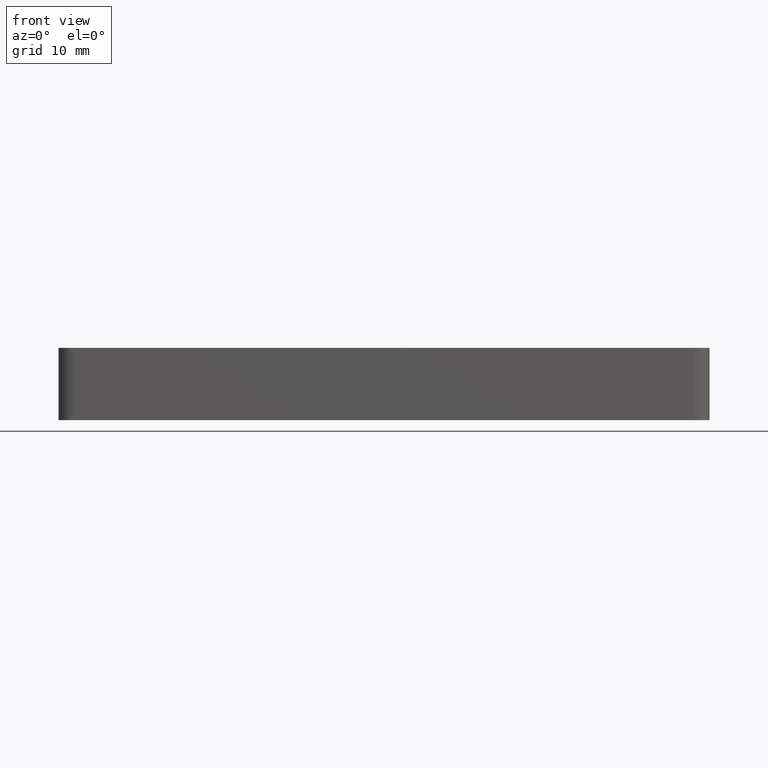
[diagram: clean part render]
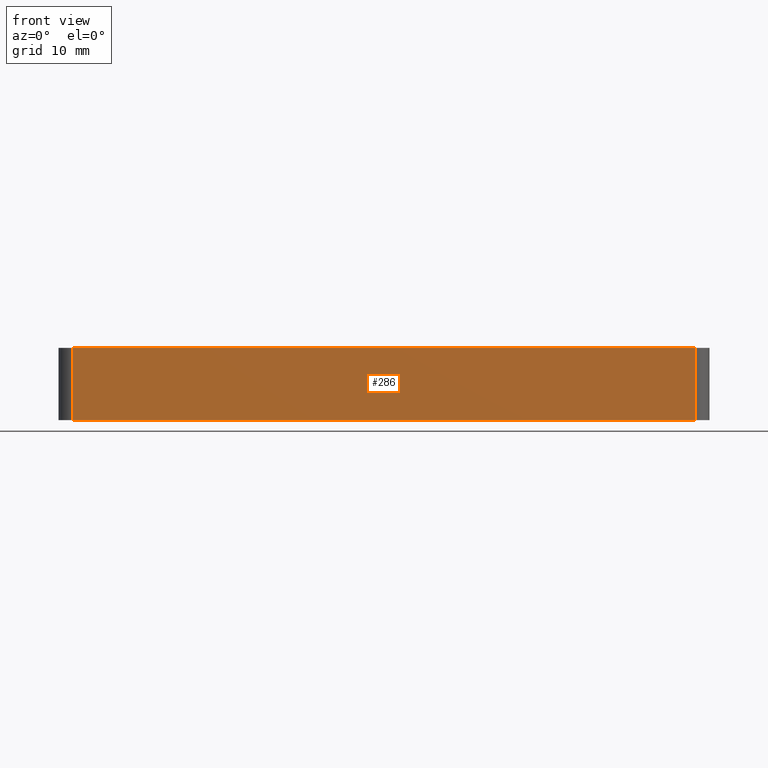
[diagram: same view with one face highlighted and labeled with its STEP entity id]
A machine part, front view. The second image highlights one B-rep face of the part: STEP entity #286.
In plain terms, the highlighted planar face has unit normal (0, -1, 0).
Its self-contained STEP definition (entity closure, byte-faithful):
#17=LINE('',#449,#33);
#21=LINE('',#463,#37);
#25=LINE('',#476,#41);
#31=LINE('',#489,#47);
#33=VECTOR('',#368,10.);
#37=VECTOR('',#380,86.);
#41=VECTOR('',#394,10.);
#47=VECTOR('',#410,86.);
#54=PLANE('',#323);
#84=FACE_OUTER_BOUND('',#111,.T.);
#111=EDGE_LOOP('',(#247,#248,#249,#250));
#144=VERTEX_POINT('',#442);
#147=VERTEX_POINT('',#447);
#153=VERTEX_POINT('',#461);
#157=VERTEX_POINT('',#474);
#173=EDGE_CURVE('',#147,#144,#17,.T.);
#180=EDGE_CURVE('',#153,#147,#21,.T.);
#186=EDGE_CURVE('',#157,#153,#25,.T.);
#193=EDGE_CURVE('',#144,#157,#31,.T.);
#247=ORIENTED_EDGE('',*,*,#173,.F.);
#248=ORIENTED_EDGE('',*,*,#180,.F.);
#249=ORIENTED_EDGE('',*,*,#186,.F.);
#250=ORIENTED_EDGE('',*,*,#193,.F.);
#286=ADVANCED_FACE('',(#84),#54,.T.);
#323=AXIS2_PLACEMENT_3D('',#488,#408,#409);
#368=DIRECTION('',(0.,0.,1.));
#380=DIRECTION('',(-1.,0.,0.));
#394=DIRECTION('',(0.,0.,-1.));
#408=DIRECTION('center_axis',(0.,-1.,0.));
#409=DIRECTION('ref_axis',(1.,0.,0.));
#410=DIRECTION('',(1.,0.,0.));
#442=CARTESIAN_POINT('',(-43.,-22.5,10.));
#447=CARTESIAN_POINT('',(-43.,-22.5,0.));
#449=CARTESIAN_POINT('',(-43.,-22.5,0.));
#461=CARTESIAN_POINT('',(43.,-22.5,0.));
#463=CARTESIAN_POINT('',(45.,-22.5,0.));
#474=CARTESIAN_POINT('',(43.,-22.5,10.));
#476=CARTESIAN_POINT('',(43.,-22.5,0.));
#488=CARTESIAN_POINT('Origin',(-45.,-22.5,0.));
#489=CARTESIAN_POINT('',(45.,-22.5,10.));